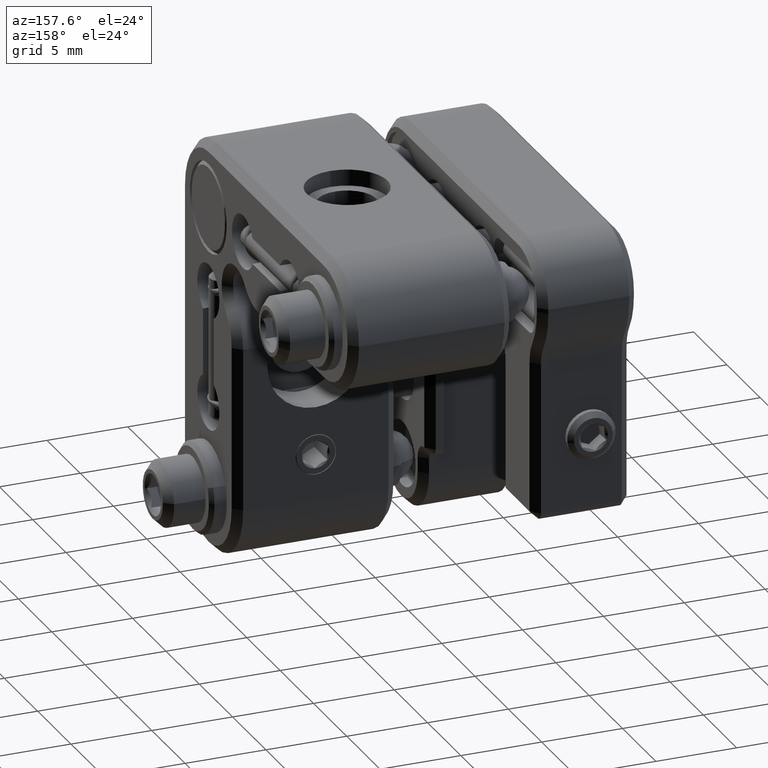
[diagram: clean part render]
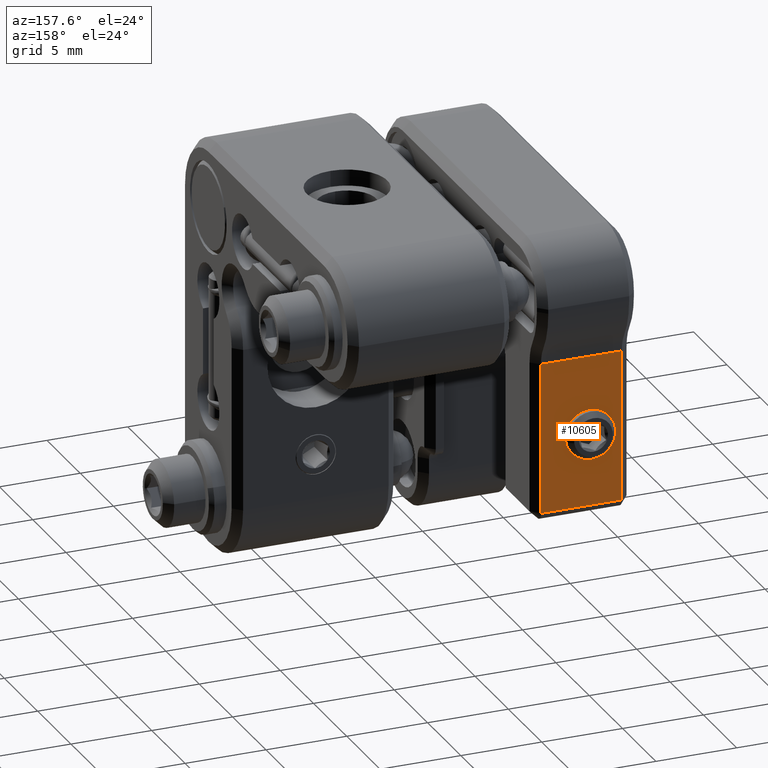
[diagram: same view with one face highlighted and labeled with its STEP entity id]
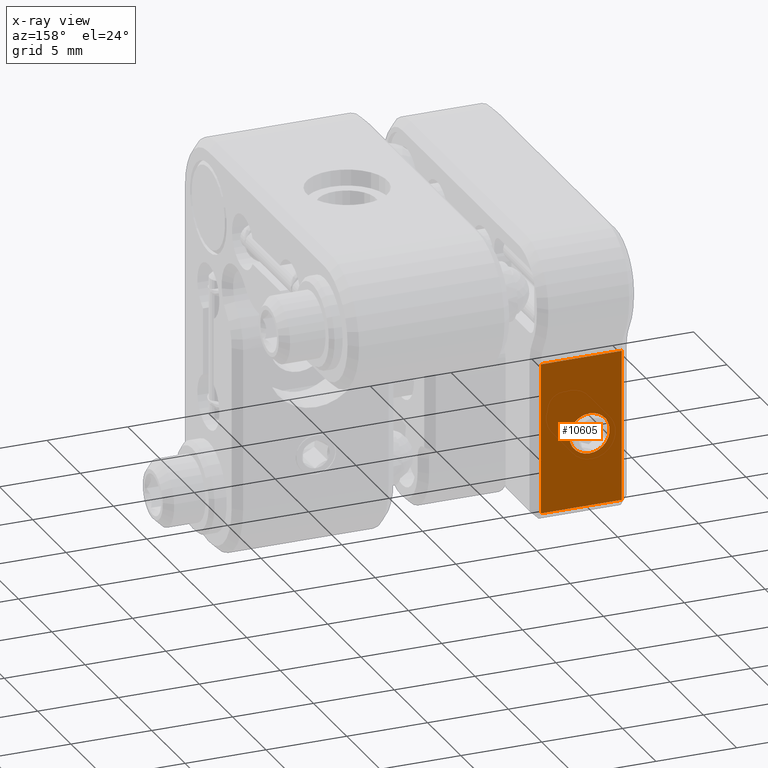
[diagram: x-ray of the same camera — body ghosted, the highlighted face saturated]
A machine part, auxiliary view. The second image highlights one B-rep face of the part: STEP entity #10605.
The next image is the same camera in x-ray: the body ghosted, the highlighted face saturated — about 0% of this face is hidden behind the body in this view.
In plain terms, the highlighted planar face has unit normal (0, -1, -0).
Its self-contained STEP definition (entity closure, byte-faithful):
#264 = EDGE_CURVE ( 'NONE', #18476, #9057, #17525, .T. ) ;
#554 = CARTESIAN_POINT ( 'NONE',  ( 15.84743632874041630, 23.60000000000000853, -15.79999999999999183 ) ) ;
#757 = DIRECTION ( 'NONE',  ( 1.000000000000000000, 0.0000000000000000000, 0.0000000000000000000 ) ) ;
#762 = ORIENTED_EDGE ( 'NONE', *, *, #12310, .F. ) ;
#1500 = AXIS2_PLACEMENT_3D ( 'NONE', #1965, #9092, #5733 ) ;
#1642 = VERTEX_POINT ( 'NONE', #4575 ) ;
#1965 = CARTESIAN_POINT ( 'NONE',  ( 12.34741132874041547, 23.60000000000000853, -11.29999999999999361 ) ) ;
#1977 = EDGE_LOOP ( 'NONE', ( #19188, #18942, #762, #8555 ) ) ;
#2668 = DIRECTION ( 'NONE',  ( 0.0000000000000000000, -2.891205793294678326E-16, 1.000000000000000000 ) ) ;
#4008 = LINE ( 'NONE', #16974, #16634 ) ;
#4260 = AXIS2_PLACEMENT_3D ( 'NONE', #20111, #11467, #9785 ) ;
#4575 = CARTESIAN_POINT ( 'NONE',  ( 15.34741132874041192, 23.60000000000000853, -6.470129908428365439 ) ) ;
#4897 = LINE ( 'NONE', #18672, #16174 ) ;
#5463 = CARTESIAN_POINT ( 'NONE',  ( 15.84743632874041630, 23.60000000000001563, -34.20000000000000995 ) ) ;
#5733 = DIRECTION ( 'NONE',  ( 0.0000000000000000000, 0.0000000000000000000, -1.000000000000000000 ) ) ;
#5872 = CARTESIAN_POINT ( 'NONE',  ( 12.34741132874041547, 23.60000000000000853, -12.54999999999999361 ) ) ;
#6272 = VECTOR ( 'NONE', #22031, 1000.000000000000000 ) ;
#7195 = DIRECTION ( 'NONE',  ( 0.0000000000000000000, -1.000000000000000000, -2.891205793294678326E-16 ) ) ;
#7466 = VERTEX_POINT ( 'NONE', #20267 ) ;
#7988 = DIRECTION ( 'NONE',  ( 0.0000000000000000000, 2.891205793294678326E-16, -1.000000000000000000 ) ) ;
#8555 = ORIENTED_EDGE ( 'NONE', *, *, #9872, .F. ) ;
#8870 = EDGE_LOOP ( 'NONE', ( #22019, #12664 ) ) ;
#9057 = VERTEX_POINT ( 'NONE', #15200 ) ;
#9092 = DIRECTION ( 'NONE',  ( -0.0000000000000000000, -1.000000000000000000, -2.891205793294678326E-16 ) ) ;
#9785 = DIRECTION ( 'NONE',  ( 0.0000000000000000000, 0.0000000000000000000, -1.000000000000000000 ) ) ;
#9872 = EDGE_CURVE ( 'NONE', #21475, #1642, #4897, .T. ) ;
#10605 = ADVANCED_FACE ( 'NONE', ( #14193, #14468 ), #10742, .F. ) ;
#10619 = VECTOR ( 'NONE', #757, 1000.000000000000000 ) ;
#10742 = PLANE ( 'NONE',  #15780 ) ;
#10821 = CARTESIAN_POINT ( 'NONE',  ( 15.84743632874041630, 23.60000000000000853, -6.470129908428365439 ) ) ;
#11467 = DIRECTION ( 'NONE',  ( -0.0000000000000000000, -1.000000000000000000, -2.891205793294678326E-16 ) ) ;
#11474 = EDGE_CURVE ( 'NONE', #13815, #7466, #4008, .T. ) ;
#11904 = EDGE_CURVE ( 'NONE', #7466, #21475, #19928, .T. ) ;
#12310 = EDGE_CURVE ( 'NONE', #1642, #13815, #12608, .T. ) ;
#12608 = LINE ( 'NONE', #10821, #6272 ) ;
#12664 = ORIENTED_EDGE ( 'NONE', *, *, #19426, .T. ) ;
#13234 = CARTESIAN_POINT ( 'NONE',  ( 10.34741132874042258, 23.60000000000000853, -6.470129908428365439 ) ) ;
#13815 = VERTEX_POINT ( 'NONE', #13234 ) ;
#14193 = FACE_BOUND ( 'NONE', #8870, .T. ) ;
#14468 = FACE_OUTER_BOUND ( 'NONE', #1977, .T. ) ;
#14658 = CIRCLE ( 'NONE', #1500, 1.249999999999999334 ) ;
#15200 = CARTESIAN_POINT ( 'NONE',  ( 12.34741132874041547, 23.60000000000000853, -10.04999999999999538 ) ) ;
#15780 = AXIS2_PLACEMENT_3D ( 'NONE', #5463, #7195, #19464 ) ;
#16174 = VECTOR ( 'NONE', #2668, 1000.000000000000000 ) ;
#16634 = VECTOR ( 'NONE', #7988, 1000.000000000000000 ) ;
#16974 = CARTESIAN_POINT ( 'NONE',  ( 10.34741132874042258, 23.60000000000001563, -34.20000000000000995 ) ) ;
#17237 = CARTESIAN_POINT ( 'NONE',  ( 15.34741132874041192, 23.60000000000000853, -15.79999999999999183 ) ) ;
#17525 = CIRCLE ( 'NONE', #4260, 1.249999999999999334 ) ;
#18476 = VERTEX_POINT ( 'NONE', #5872 ) ;
#18672 = CARTESIAN_POINT ( 'NONE',  ( 15.34741132874041192, 23.60000000000000853, -6.470129908428365439 ) ) ;
#18942 = ORIENTED_EDGE ( 'NONE', *, *, #11474, .F. ) ;
#19188 = ORIENTED_EDGE ( 'NONE', *, *, #11904, .F. ) ;
#19426 = EDGE_CURVE ( 'NONE', #9057, #18476, #14658, .T. ) ;
#19464 = DIRECTION ( 'NONE',  ( 0.0000000000000000000, -2.891205793294678326E-16, 1.000000000000000000 ) ) ;
#19928 = LINE ( 'NONE', #554, #10619 ) ;
#20111 = CARTESIAN_POINT ( 'NONE',  ( 12.34741132874041547, 23.60000000000000853, -11.29999999999999361 ) ) ;
#20267 = CARTESIAN_POINT ( 'NONE',  ( 10.34741132874042258, 23.60000000000000853, -15.79999999999999183 ) ) ;
#21475 = VERTEX_POINT ( 'NONE', #17237 ) ;
#22019 = ORIENTED_EDGE ( 'NONE', *, *, #264, .T. ) ;
#22031 = DIRECTION ( 'NONE',  ( -1.000000000000000000, 0.0000000000000000000, 0.0000000000000000000 ) ) ;